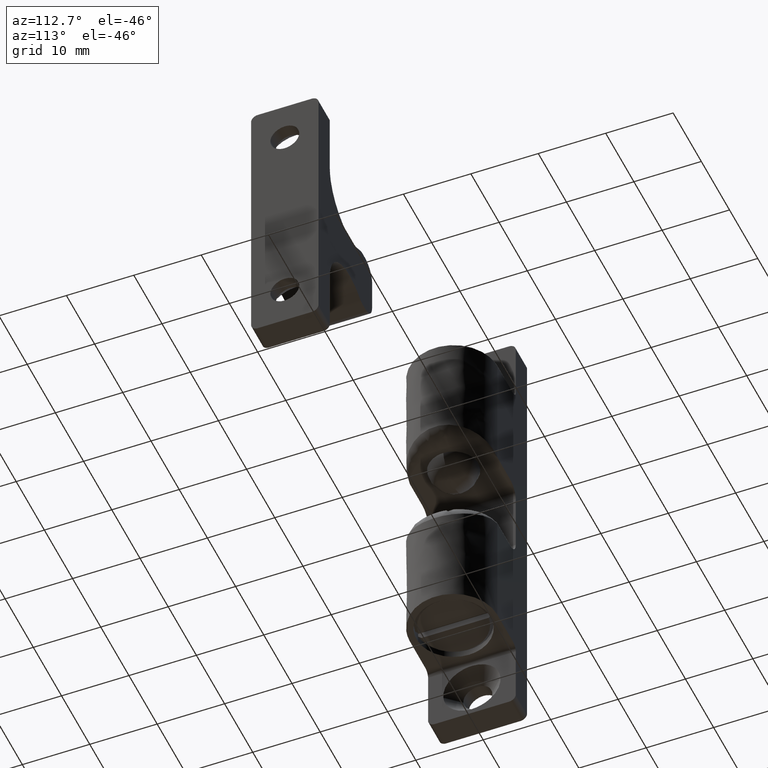
[diagram: clean part render]
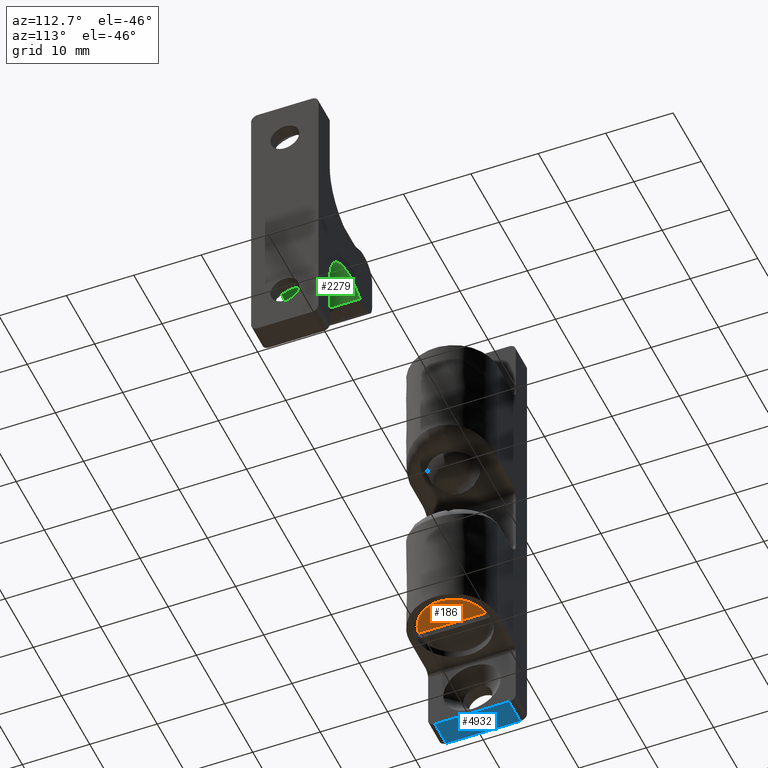
[diagram: same view with three faces highlighted in distinct colors, each labeled with its STEP entity id]
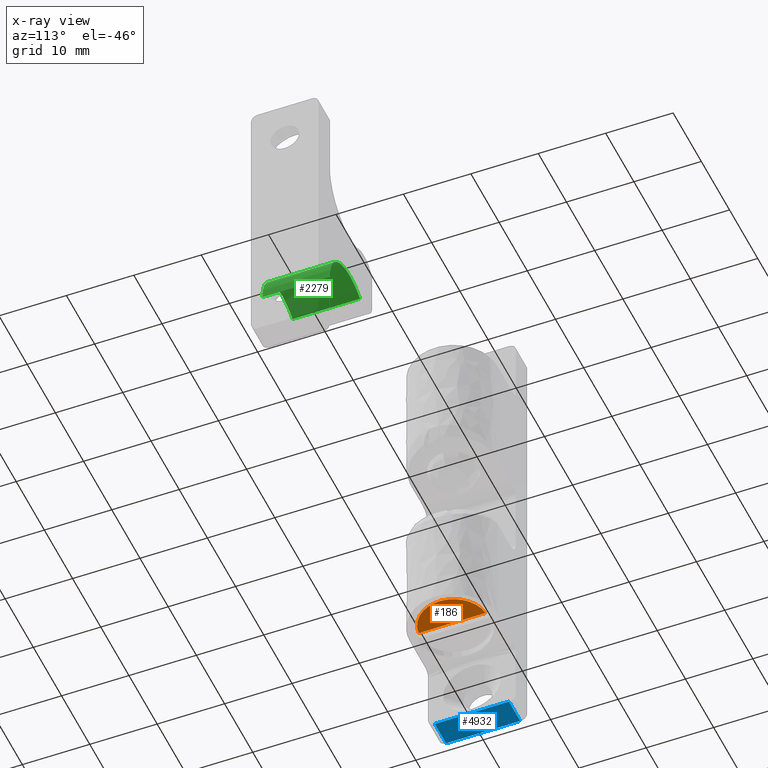
[diagram: x-ray of the same camera — body ghosted, the three highlighted faces saturated]
A machine part, auxiliary view with three faces highlighted in distinct colors.
The next image is the same camera in x-ray (body ghosted, the three faces saturated) — at least one of them is partly hidden behind the body in this view.
Their STEP definitions:

[orange] entity #186 — the highlighted face is a freeform B-spline surface patch.
#149=CARTESIAN_POINT('',(10.775225008721881,5.471933391083092,-24.0));
#150=CARTESIAN_POINT('',(10.775225008721881,-5.471933657959519,-24.0));
#151=CARTESIAN_POINT('',(15.724775111977401,5.471933391083092,-24.0));
#152=CARTESIAN_POINT('',(15.724775111977401,-5.471933657959519,-24.0));
#153=B_SPLINE_SURFACE_WITH_KNOTS('',1,1,((#149,#151),(#150,#152)),.UNSPECIFIED.,.F.,.F.,.U.,(2,2),(2,2),(0.0,10.943867049042611),(0.0,4.949550103255527),.UNSPECIFIED.);
#154=CARTESIAN_POINT('',(11.0,-4.974937185533120,-24.0));
#155=VERTEX_POINT('',#154);
#156=CARTESIAN_POINT('',(11.0,4.974937185533120,-24.0));
#157=VERTEX_POINT('',#156);
#158=CARTESIAN_POINT('',(11.0,-4.974937185533120,-24.0));
#159=CARTESIAN_POINT('',(11.0,4.974937185533120,-24.0));
#160=QUASI_UNIFORM_CURVE('',1,(#158,#159),.UNSPECIFIED.,.F.,.U.);
#161=EDGE_CURVE('',#155,#157,#160,.T.);
#162=ORIENTED_EDGE('',*,*,#161,.T.);
#163=CARTESIAN_POINT('',(11.0,4.974937185533120,-24.0));
#164=CARTESIAN_POINT('',(11.362005726203700,4.938603100861068,-23.999999999999989));
#165=CARTESIAN_POINT('',(12.134577486500200,4.774477235507218,-23.999999999999940));
#166=CARTESIAN_POINT('',(13.092847743135840,4.317653787348377,-24.000000000000121));
#167=CARTESIAN_POINT('',(13.917644511465870,3.688414170531488,-24.000000000000011));
#168=CARTESIAN_POINT('',(14.524618535472561,3.017396538639529,-24.000000000000082));
#169=CARTESIAN_POINT('',(14.973518331369590,2.278103702518054,-23.999999999999961));
#170=CARTESIAN_POINT('',(15.295111178218580,1.497168150023853,-24.000000000000050));
#171=CARTESIAN_POINT('',(15.496062956007011,0.615503243305668,-23.999999999999851));
#172=CARTESIAN_POINT('',(15.516826383174349,-0.289070735639750,-24.000000000000458));
#173=CARTESIAN_POINT('',(15.399683134777799,-1.067266132029173,-23.999999999999869));
#174=CARTESIAN_POINT('',(15.197155518953760,-1.767695374987470,-24.000000000000139));
#175=CARTESIAN_POINT('',(14.827963003192460,-2.571056797771220,-24.000000000000028));
#176=CARTESIAN_POINT('',(14.201775692316369,-3.426521446660038,-24.000000000000540));
#177=CARTESIAN_POINT('',(13.309372600772861,-4.192177033948582,-24.000000000000099));
#178=CARTESIAN_POINT('',(12.227913186779681,-4.746337673690749,-23.999999999998501));
#179=CARTESIAN_POINT('',(11.419170906381790,-4.932919939447335,-24.000000000002512));
#180=CARTESIAN_POINT('',(11.0,-4.974937185533120,-24.0));
#181=B_SPLINE_CURVE_WITH_KNOTS('',3,(#163,#164,#165,#166,#167,#168,#169,#170,#171,#172,#173,#174,#175,#176,#177,#178,#179,#180),.UNSPECIFIED.,.F.,.U.,(4,1,1,1,1,1,1,1,1,1,1,1,1,1,1,4),(0.000000155856851,1.091485038256922,2.355312717473119,3.159572663860182,4.193616910630791,5.055317880427452,5.744685792060940,6.721283778752756,7.755269791702640,8.444658195142173,9.076576497901087,9.938288218090047,11.087226053848250,12.236167615077640,13.442577069390881,14.706369939318860),.UNSPECIFIED.);
#182=EDGE_CURVE('',#157,#155,#181,.T.);
#183=ORIENTED_EDGE('',*,*,#182,.T.);
#184=EDGE_LOOP('',(#162,#183));
#185=FACE_OUTER_BOUND('',#184,.T.);
#186=ADVANCED_FACE('',(#185),#153,.F.);

[blue] entity #4932 — the highlighted face is a freeform B-spline surface patch.
#3769=CARTESIAN_POINT('',(-1.010300E-015,5.500000000000000,-35.0));
#3770=VERTEX_POINT('',#3769);
#3784=CARTESIAN_POINT('',(1.010300E-015,-5.500000000000000,-35.0));
#3785=VERTEX_POINT('',#3784);
#3786=CARTESIAN_POINT('',(-1.010300E-015,5.500000000000000,-35.0));
#3787=CARTESIAN_POINT('',(1.010300E-015,-5.500000000000000,-35.0));
#3788=QUASI_UNIFORM_CURVE('',1,(#3786,#3787),.UNSPECIFIED.,.F.,.U.);
#3789=EDGE_CURVE('',#3770,#3785,#3788,.T.);
#4522=CARTESIAN_POINT('',(4.0,-5.500000000000000,-35.0));
#4523=VERTEX_POINT('',#4522);
#4524=CARTESIAN_POINT('',(4.0,-5.500000000000000,-35.0));
#4525=CARTESIAN_POINT('',(1.010300E-015,-5.500000000000000,-35.0));
#4526=QUASI_UNIFORM_CURVE('',1,(#4524,#4525),.UNSPECIFIED.,.F.,.U.);
#4527=EDGE_CURVE('',#4523,#3785,#4526,.T.);
#4566=CARTESIAN_POINT('',(4.0,5.500000000000000,-35.0));
#4567=VERTEX_POINT('',#4566);
#4583=CARTESIAN_POINT('',(-1.010300E-015,5.500000000000000,-35.0));
#4584=CARTESIAN_POINT('',(4.0,5.500000000000000,-35.0));
#4585=QUASI_UNIFORM_CURVE('',1,(#4583,#4584),.UNSPECIFIED.,.F.,.U.);
#4586=EDGE_CURVE('',#3770,#4567,#4585,.T.);
#4917=CARTESIAN_POINT('',(4.199799992247224,6.049449978679865,-35.0));
#4918=CARTESIAN_POINT('',(4.199799992247224,-6.049450273722857,-35.0));
#4919=CARTESIAN_POINT('',(-0.199800099535585,6.049449978679865,-35.0));
#4920=CARTESIAN_POINT('',(-0.199800099535585,-6.049450273722857,-35.0));
#4921=B_SPLINE_SURFACE_WITH_KNOTS('',1,1,((#4917,#4919),(#4918,#4920)),.UNSPECIFIED.,.F.,.F.,.U.,(2,2),(2,2),(0.0,12.098900252402720),(0.0,4.399600091782808),.UNSPECIFIED.);
#4922=ORIENTED_EDGE('',*,*,#3789,.F.);
#4923=ORIENTED_EDGE('',*,*,#4586,.T.);
#4924=CARTESIAN_POINT('',(4.0,-5.500000000000000,-35.0));
#4925=CARTESIAN_POINT('',(4.0,5.500000000000000,-35.0));
#4926=QUASI_UNIFORM_CURVE('',1,(#4924,#4925),.UNSPECIFIED.,.F.,.U.);
#4927=EDGE_CURVE('',#4523,#4567,#4926,.T.);
#4928=ORIENTED_EDGE('',*,*,#4927,.F.);
#4929=ORIENTED_EDGE('',*,*,#4527,.T.);
#4930=EDGE_LOOP('',(#4922,#4923,#4928,#4929));
#4931=FACE_OUTER_BOUND('',#4930,.T.);
#4932=ADVANCED_FACE('',(#4931),#4921,.T.);

[green] entity #2279 — the highlighted face is a freeform B-spline surface patch.
#1924=CARTESIAN_POINT('',(66.357143802650199,5.0,-10.699999999999999));
#1925=VERTEX_POINT('',#1924);
#1931=CARTESIAN_POINT('',(55.636649540521113,5.0,-4.770588229900980));
#1932=VERTEX_POINT('',#1931);
#1933=CARTESIAN_POINT('',(66.357143802650199,5.0,-10.699999999999999));
#1934=CARTESIAN_POINT('',(66.357323969569620,4.999999999999996,-10.097816950553490));
#1935=CARTESIAN_POINT('',(66.243630446506131,5.000000000000013,-9.223810337261186));
#1936=CARTESIAN_POINT('',(65.850133263796295,4.999999999999978,-8.021811733403471));
#1937=CARTESIAN_POINT('',(65.427941784387187,5.000000000000032,-7.165074977214172));
#1938=CARTESIAN_POINT('',(64.820385979991684,4.999999999999957,-6.283745843785428));
#1939=CARTESIAN_POINT('',(64.169875251778180,5.000000000000003,-5.584411615700634));
#1940=CARTESIAN_POINT('',(63.368020598776731,5.000000000000012,-4.935952460330062));
#1941=CARTESIAN_POINT('',(62.350211744992713,5.000000000000116,-4.322019987580153));
#1942=CARTESIAN_POINT('',(61.173220756148027,4.999999999999914,-3.896308400244194));
#1943=CARTESIAN_POINT('',(59.961964953373467,5.000000000000053,-3.701283642308237));
#1944=CARTESIAN_POINT('',(58.988103380192861,4.999999999999980,-3.687603219424808));
#1945=CARTESIAN_POINT('',(57.906447564772357,4.999999999999981,-3.821613644424225));
#1946=CARTESIAN_POINT('',(56.781714678927223,5.000000000000094,-4.146883239857901));
#1947=CARTESIAN_POINT('',(55.998605764583083,4.999999999999926,-4.543422076382963));
#1948=CARTESIAN_POINT('',(55.636649540521113,5.0,-4.770588229900980));
#1949=B_SPLINE_CURVE_WITH_KNOTS('',3,(#1933,#1934,#1935,#1936,#1937,#1938,#1939,#1940,#1941,#1942,#1943,#1944,#1945,#1946,#1947,#1948),.UNSPECIFIED.,.F.,.U.,(4,1,1,1,1,1,1,1,1,1,1,1,1,4),(0.000000135131279,1.806483105624618,2.622340153740220,3.787826642804648,4.661950192357793,5.827425139525172,6.643276103920998,7.750445773604302,9.382150152678843,10.372804736471750,11.421752590488239,12.295865163954350,13.636196021245320,14.918203450037700),.UNSPECIFIED.);
#1950=EDGE_CURVE('',#1925,#1932,#1949,.T.);
#2067=CARTESIAN_POINT('',(66.357143802650199,-5.0,-10.699999999999999));
#2068=VERTEX_POINT('',#2067);
#2174=CARTESIAN_POINT('',(55.636649540521113,-5.0,-4.770588229900980));
#2175=VERTEX_POINT('',#2174);
#2189=CARTESIAN_POINT('',(66.357143802650199,-5.0,-10.699999999999999));
#2190=CARTESIAN_POINT('',(66.357323969569620,-4.999999999999996,-10.097816950553490));
#2191=CARTESIAN_POINT('',(66.243630446506131,-5.000000000000013,-9.223810337261186));
#2192=CARTESIAN_POINT('',(65.850133263796295,-4.999999999999978,-8.021811733403471));
#2193=CARTESIAN_POINT('',(65.427941784387187,-5.000000000000032,-7.165074977214172));
#2194=CARTESIAN_POINT('',(64.820385979991684,-4.999999999999957,-6.283745843785428));
#2195=CARTESIAN_POINT('',(64.169875251778180,-5.000000000000003,-5.584411615700634));
#2196=CARTESIAN_POINT('',(63.368020598776731,-5.000000000000012,-4.935952460330062));
#2197=CARTESIAN_POINT('',(62.350211744992713,-5.000000000000116,-4.322019987580153));
#2198=CARTESIAN_POINT('',(61.173220756148027,-4.999999999999914,-3.896308400244194));
#2199=CARTESIAN_POINT('',(59.961964953373467,-5.000000000000053,-3.701283642308237));
#2200=CARTESIAN_POINT('',(58.988103380192861,-4.999999999999980,-3.687603219424808));
#2201=CARTESIAN_POINT('',(57.906447564772357,-4.999999999999981,-3.821613644424225));
#2202=CARTESIAN_POINT('',(56.781714678927223,-5.000000000000094,-4.146883239857901));
#2203=CARTESIAN_POINT('',(55.998605764583083,-4.999999999999926,-4.543422076382963));
#2204=CARTESIAN_POINT('',(55.636649540521113,-5.0,-4.770588229900980));
#2205=B_SPLINE_CURVE_WITH_KNOTS('',3,(#2189,#2190,#2191,#2192,#2193,#2194,#2195,#2196,#2197,#2198,#2199,#2200,#2201,#2202,#2203,#2204),.UNSPECIFIED.,.F.,.U.,(4,1,1,1,1,1,1,1,1,1,1,1,1,4),(0.000000135131279,1.806483105624618,2.622340153740220,3.787826642804648,4.661950192357793,5.827425139525172,6.643276103920998,7.750445773604302,9.382150152678843,10.372804736471750,11.421752590488239,12.295865163954350,13.636196021245320,14.918203450037700),.UNSPECIFIED.);
#2206=EDGE_CURVE('',#2068,#2175,#2205,.T.);
#2239=CARTESIAN_POINT('',(66.357143802650199,-5.0,-10.699999999999999));
#2240=CARTESIAN_POINT('',(66.357143802650199,5.0,-10.699999999999999));
#2241=QUASI_UNIFORM_CURVE('',1,(#2239,#2240),.UNSPECIFIED.,.F.,.U.);
#2242=EDGE_CURVE('',#2068,#1925,#2241,.T.);
#2255=CARTESIAN_POINT('',(66.351038373409580,-5.250000000000001,-10.992299047385229));
#2256=CARTESIAN_POINT('',(66.351038373409580,5.256250000000001,-10.992299047385229));
#2257=CARTESIAN_POINT('',(66.963856070224651,-5.250000000000000,3.670705847637908));
#2258=CARTESIAN_POINT('',(66.963856070224651,5.256250000000001,3.670705847637908));
#2259=CARTESIAN_POINT('',(55.182902360631722,-5.250000000000001,-5.080773328674539));
#2260=CARTESIAN_POINT('',(55.182902360631722,5.256250000000001,-5.080773328674539));
#2268=(BOUNDED_SURFACE()B_SPLINE_SURFACE(1,2,((#2255,#2257,#2259),(#2256,#2258,#2260)),.UNSPECIFIED.,.F.,.F.,.U.)B_SPLINE_SURFACE_WITH_KNOTS((2,2),(3,3),(0.0,10.506250000000000),(0.0,17.666684318760559),.UNSPECIFIED.)GEOMETRIC_REPRESENTATION_ITEM()RATIONAL_B_SPLINE_SURFACE(((1.0,0.430511096808295,1.0),(1.0,0.430511096808295,1.0)))REPRESENTATION_ITEM('')SURFACE());
#2269=ORIENTED_EDGE('',*,*,#1950,.F.);
#2270=ORIENTED_EDGE('',*,*,#2242,.F.);
#2271=ORIENTED_EDGE('',*,*,#2206,.T.);
#2272=CARTESIAN_POINT('',(55.636649540521113,-5.0,-4.770588229900980));
#2273=CARTESIAN_POINT('',(55.636649540521113,5.0,-4.770588229900980));
#2274=QUASI_UNIFORM_CURVE('',1,(#2272,#2273),.UNSPECIFIED.,.F.,.U.);
#2275=EDGE_CURVE('',#2175,#1932,#2274,.T.);
#2276=ORIENTED_EDGE('',*,*,#2275,.T.);
#2277=EDGE_LOOP('',(#2269,#2270,#2271,#2276));
#2278=FACE_OUTER_BOUND('',#2277,.T.);
#2279=ADVANCED_FACE('',(#2278),#2268,.F.);